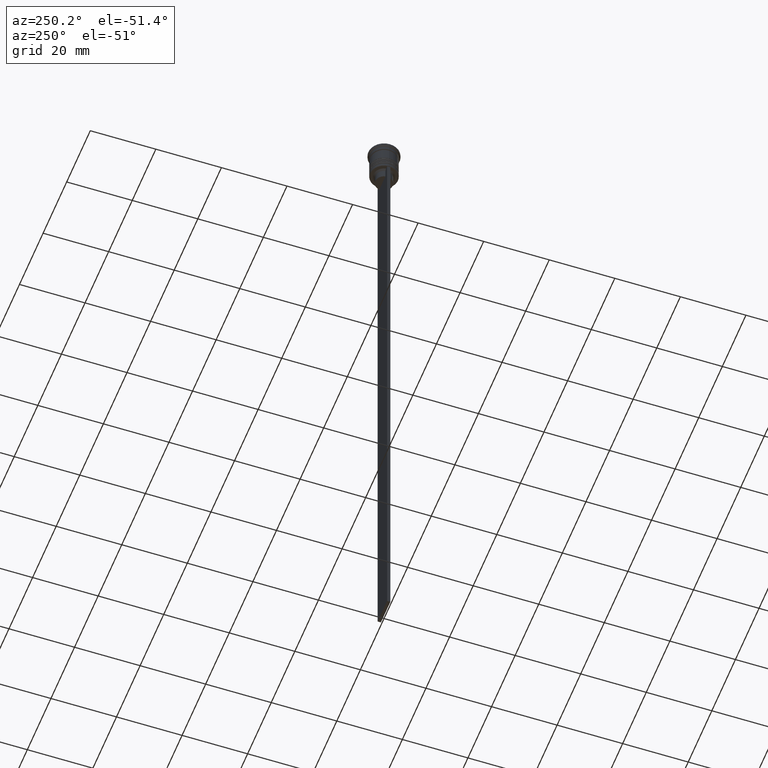
[diagram: clean part render]
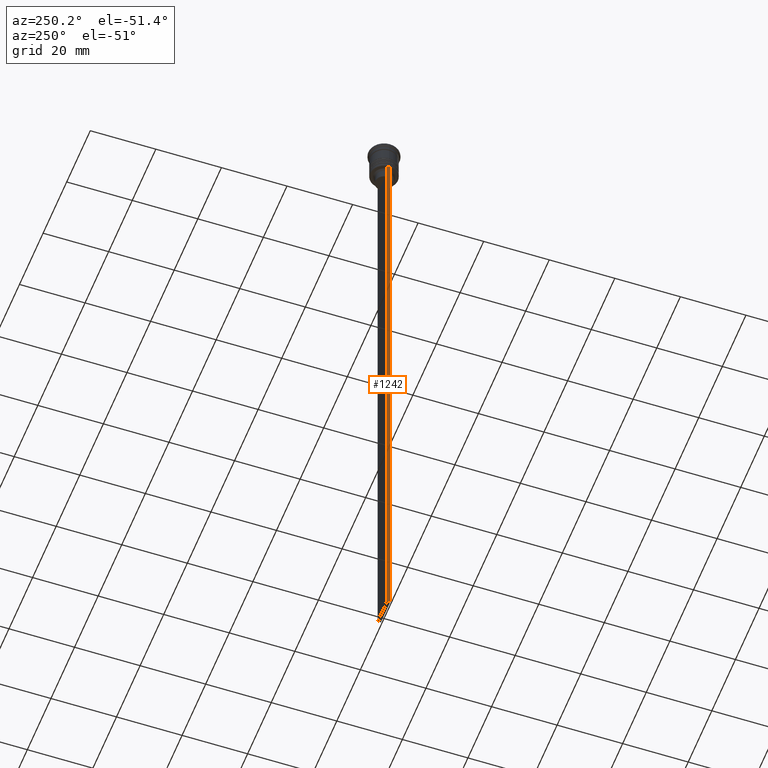
[diagram: same view with one face highlighted and labeled with its STEP entity id]
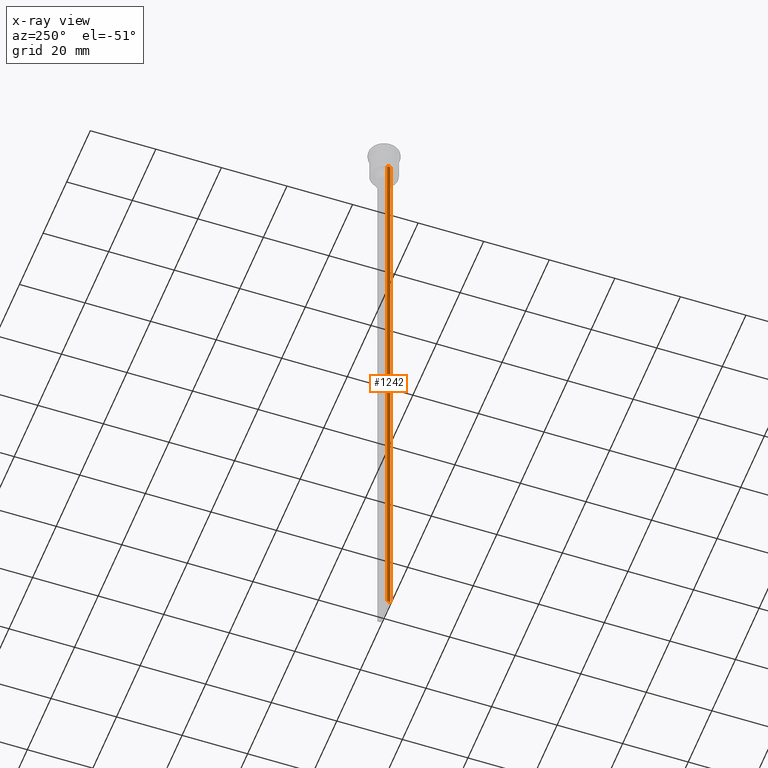
[diagram: x-ray of the same camera — body ghosted, the highlighted face saturated]
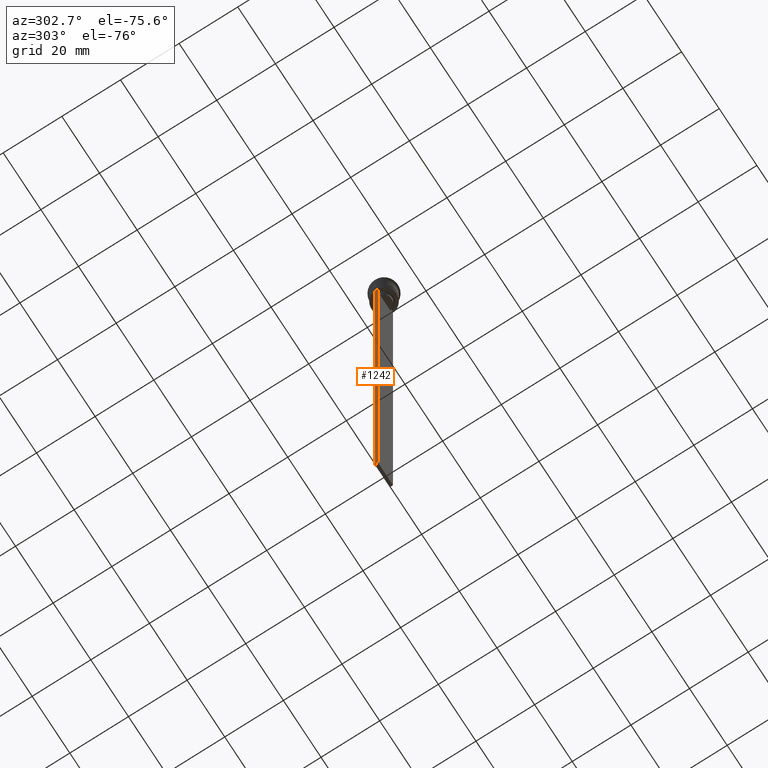
[diagram: same view with one face highlighted and labeled with its STEP entity id]
A machine part, auxiliary view. The second image highlights one B-rep face of the part: STEP entity #1242.
The next image is the same camera in x-ray: the body ghosted, the highlighted face saturated — about 0% of this face is hidden behind the body in this view.
A second angle (auxiliary view) of the same face is appended — the face is thin or edge-on in the first view.
In plain terms, the highlighted planar face has unit normal (-1, 0, 0).
Its self-contained STEP definition (entity closure, byte-faithful):
#85 = VECTOR ( 'NONE', #2048, 1000.000000000000000 ) ;
#116 = VERTEX_POINT ( 'NONE', #1866 ) ;
#122 = VERTEX_POINT ( 'NONE', #1443 ) ;
#153 = EDGE_CURVE ( 'NONE', #1363, #2314, #572, .T. ) ;
#288 = CARTESIAN_POINT ( 'NONE',  ( -3.999999999999994671, 0.4999999999999997780, -9.500000000000000000 ) ) ;
#411 = LINE ( 'NONE', #2263, #515 ) ;
#417 = LINE ( 'NONE', #1006, #557 ) ;
#434 = ORIENTED_EDGE ( 'NONE', *, *, #1269, .F. ) ;
#490 = EDGE_CURVE ( 'NONE', #116, #2314, #654, .T. ) ;
#515 = VECTOR ( 'NONE', #787, 1000.000000000000000 ) ;
#557 = VECTOR ( 'NONE', #1933, 1000.000000000000000 ) ;
#572 = LINE ( 'NONE', #902, #85 ) ;
#626 = DIRECTION ( 'NONE',  ( 0.000000000000000000, 0.000000000000000000, 1.000000000000000000 ) ) ;
#654 = LINE ( 'NONE', #956, #744 ) ;
#681 = ORIENTED_EDGE ( 'NONE', *, *, #490, .F. ) ;
#744 = VECTOR ( 'NONE', #1587, 1000.000000000000000 ) ;
#787 = DIRECTION ( 'NONE',  ( 0.000000000000000000, -1.000000000000000000, 0.000000000000000000 ) ) ;
#902 = CARTESIAN_POINT ( 'NONE',  ( -3.999999999999994671, 0.4999999999999995559, -1.437742251701450202 ) ) ;
#956 = CARTESIAN_POINT ( 'NONE',  ( -3.999999999999994671, -0.5000000000000004441, -209.5000000000000284 ) ) ;
#970 = PLANE ( 'NONE',  #1328 ) ;
#1006 = CARTESIAN_POINT ( 'NONE',  ( -3.999999999999994671, -0.5000000000000004441, -1.437742251701450202 ) ) ;
#1012 = EDGE_LOOP ( 'NONE', ( #434, #1809, #681, #1885 ) ) ;
#1242 = ADVANCED_FACE ( 'NONE', ( #1325 ), #970, .T. ) ;
#1269 = EDGE_CURVE ( 'NONE', #1363, #122, #411, .T. ) ;
#1325 = FACE_OUTER_BOUND ( 'NONE', #1012, .T. ) ;
#1328 = AXIS2_PLACEMENT_3D ( 'NONE', #1507, #2067, #626 ) ;
#1363 = VERTEX_POINT ( 'NONE', #288 ) ;
#1443 = CARTESIAN_POINT ( 'NONE',  ( -3.999999999999994671, -0.5000000000000004441, -9.500000000000000000 ) ) ;
#1507 = CARTESIAN_POINT ( 'NONE',  ( -3.999999999999994671, -0.5000000000000004441, -1.437742251701450202 ) ) ;
#1587 = DIRECTION ( 'NONE',  ( 0.000000000000000000, 1.000000000000000000, 0.000000000000000000 ) ) ;
#1809 = ORIENTED_EDGE ( 'NONE', *, *, #153, .T. ) ;
#1866 = CARTESIAN_POINT ( 'NONE',  ( -3.999999999999994671, -0.5000000000000004441, -209.5000000000000284 ) ) ;
#1885 = ORIENTED_EDGE ( 'NONE', *, *, #2091, .F. ) ;
#1933 = DIRECTION ( 'NONE',  ( 0.000000000000000000, 0.000000000000000000, -1.000000000000000000 ) ) ;
#2048 = DIRECTION ( 'NONE',  ( 0.000000000000000000, 0.000000000000000000, -1.000000000000000000 ) ) ;
#2067 = DIRECTION ( 'NONE',  ( -1.000000000000000000, 0.000000000000000000, 0.000000000000000000 ) ) ;
#2069 = CARTESIAN_POINT ( 'NONE',  ( -3.999999999999994671, 0.4999999999999995559, -209.5000000000000284 ) ) ;
#2091 = EDGE_CURVE ( 'NONE', #122, #116, #417, .T. ) ;
#2263 = CARTESIAN_POINT ( 'NONE',  ( -3.999999999999994671, -0.5000000000000004441, -9.500000000000000000 ) ) ;
#2314 = VERTEX_POINT ( 'NONE', #2069 ) ;